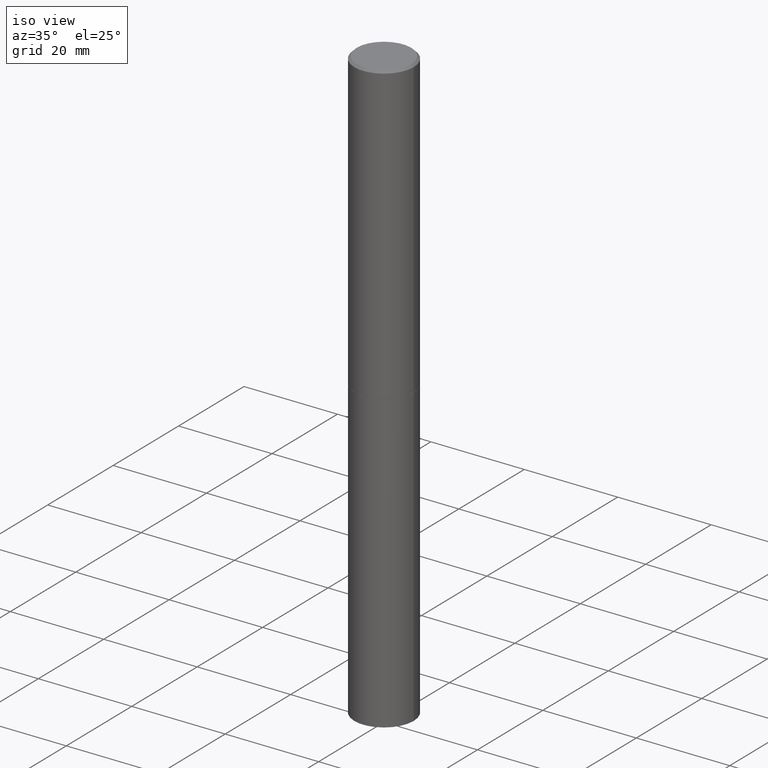
[diagram: clean part render]
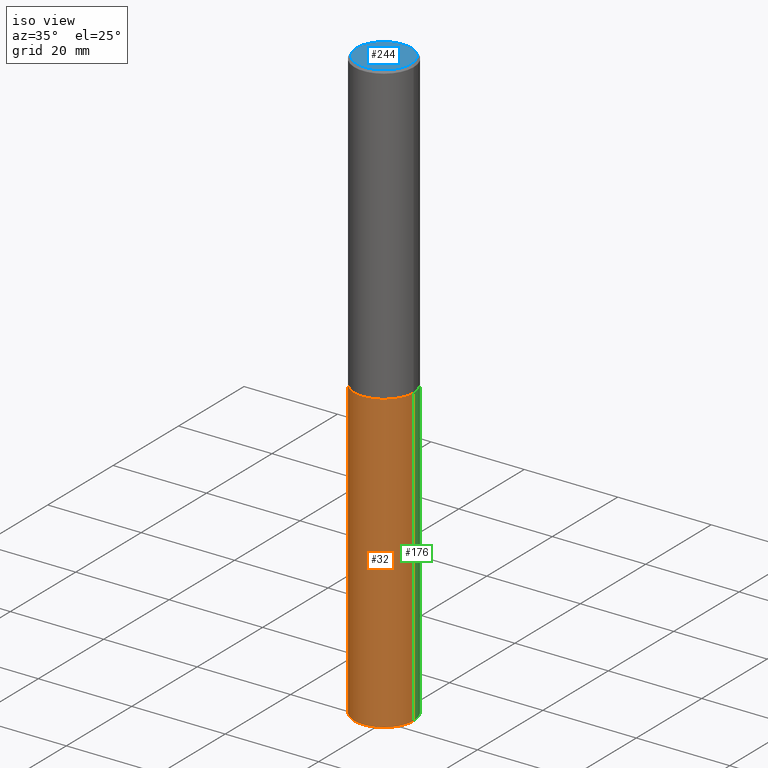
[diagram: same view with three faces highlighted in distinct colors, each labeled with its STEP entity id]
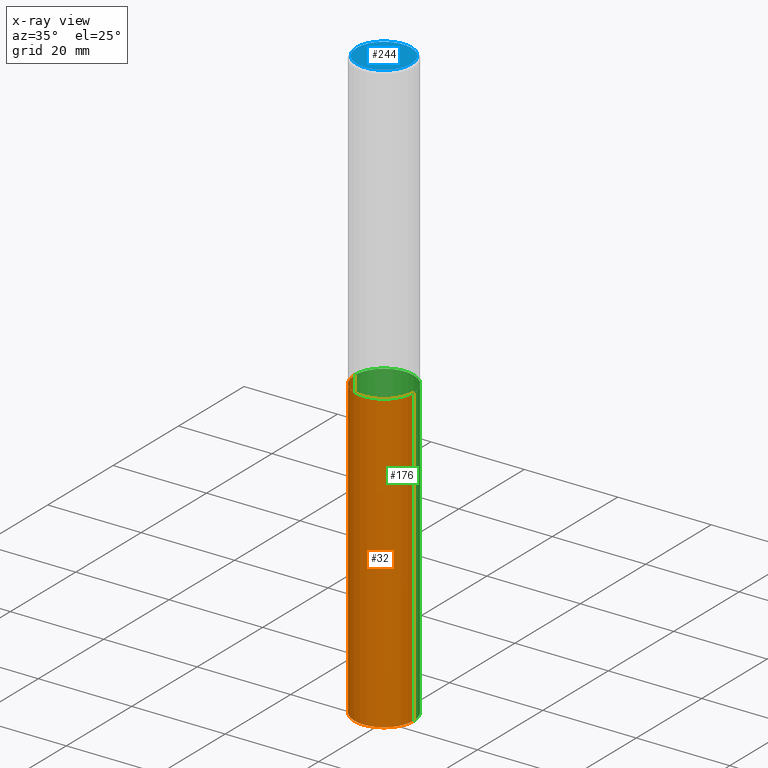
[diagram: x-ray of the same camera — body ghosted, the three highlighted faces saturated]
A machine part, iso view with three faces highlighted in distinct colors.
The next image is the same camera in x-ray (body ghosted, the three faces saturated) — at least one of them is partly hidden behind the body in this view.
Their STEP definitions:

[orange] entity #32 — the highlighted cylindrical surface (edge-blend (fillet) strip) has radius 6.35 mm, axis along (-0, 0, 1).
#19 = DIRECTION ( 'NONE',  ( -2.445468806185136597E-29, 3.491481338843145583E-15, 1.000000000000000000 ) ) ;
#31 = CARTESIAN_POINT ( 'NONE',  ( 0.2500000000000000000, -1.745740669421566678E-15, 1.219044193948983948E-29 ) ) ;
#32 = ADVANCED_FACE ( 'NONE', ( #220 ), #126, .T. ) ;
#34 = EDGE_CURVE ( 'NONE', #73, #54, #215, .T. ) ;
#40 = VERTEX_POINT ( 'NONE', #189 ) ;
#49 = CIRCLE ( 'NONE', #75, 0.2500000000000000000 ) ;
#54 = VERTEX_POINT ( 'NONE', #363 ) ;
#58 = DIRECTION ( 'NONE',  ( -2.445468806185136597E-29, 3.491481338843145583E-15, 1.000000000000000000 ) ) ;
#62 = CARTESIAN_POINT ( 'NONE',  ( 0.2500000000000000000, -1.920314736363729656E-14, -5.000000000000000000 ) ) ;
#66 = CIRCLE ( 'NONE', #298, 0.2500000000000000000 ) ;
#73 = VERTEX_POINT ( 'NONE', #85 ) ;
#75 = AXIS2_PLACEMENT_3D ( 'NONE', #288, #58, #173 ) ;
#85 = CARTESIAN_POINT ( 'NONE',  ( -0.2500000000000000000, -1.131669818126154695E-14, -5.000000000000000000 ) ) ;
#86 = ORIENTED_EDGE ( 'NONE', *, *, #222, .T. ) ;
#117 = VECTOR ( 'NONE', #297, 39.37007874015748143 ) ;
#126 = CYLINDRICAL_SURFACE ( 'NONE', #353, 0.2500000000000000000 ) ;
#154 = DIRECTION ( 'NONE',  ( 1.000000000000000000, -6.982962677686266711E-15, 4.876176775795935793E-29 ) ) ;
#162 = ORIENTED_EDGE ( 'NONE', *, *, #341, .T. ) ;
#168 = LINE ( 'NONE', #31, #193 ) ;
#173 = DIRECTION ( 'NONE',  ( 1.000000000000000000, -6.982962677686266711E-15, 0.000000000000000000 ) ) ;
#183 = CARTESIAN_POINT ( 'NONE',  ( -0.2500000000000000000, 1.776356839400250465E-15, -1.229733772563726445E-29 ) ) ;
#189 = CARTESIAN_POINT ( 'NONE',  ( 0.2500000000000000000, -1.047444401652943162E-14, -2.500000000000000000 ) ) ;
#193 = VECTOR ( 'NONE', #291, 39.37007874015748143 ) ;
#215 = LINE ( 'NONE', #183, #117 ) ;
#220 = FACE_OUTER_BOUND ( 'NONE', #271, .T. ) ;
#222 = EDGE_CURVE ( 'NONE', #73, #354, #66, .T. ) ;
#223 = DIRECTION ( 'NONE',  ( -2.445468806185136597E-29, 3.491481338843145583E-15, 1.000000000000000000 ) ) ;
#225 = CARTESIAN_POINT ( 'NONE',  ( 1.222734403092568523E-28, -1.745740669421572989E-14, -5.000000000000000000 ) ) ;
#238 = CARTESIAN_POINT ( 'NONE',  ( 0.000000000000000000, 0.000000000000000000, 0.000000000000000000 ) ) ;
#247 = DIRECTION ( 'NONE',  ( 1.000000000000000000, -6.982962677686270655E-15, 0.000000000000000000 ) ) ;
#268 = ORIENTED_EDGE ( 'NONE', *, *, #323, .F. ) ;
#271 = EDGE_LOOP ( 'NONE', ( #356, #86, #162, #268 ) ) ;
#288 = CARTESIAN_POINT ( 'NONE',  ( 6.113672015462842613E-29, -8.728703347107864943E-15, -2.500000000000000000 ) ) ;
#291 = DIRECTION ( 'NONE',  ( -2.445468806185136877E-29, 3.491481338843145188E-15, 1.000000000000000000 ) ) ;
#297 = DIRECTION ( 'NONE',  ( -2.445468806185136877E-29, 3.491481338843145188E-15, 1.000000000000000000 ) ) ;
#298 = AXIS2_PLACEMENT_3D ( 'NONE', #225, #223, #247 ) ;
#323 = EDGE_CURVE ( 'NONE', #54, #40, #49, .T. ) ;
#341 = EDGE_CURVE ( 'NONE', #354, #40, #168, .T. ) ;
#353 = AXIS2_PLACEMENT_3D ( 'NONE', #238, #19, #154 ) ;
#354 = VERTEX_POINT ( 'NONE', #62 ) ;
#356 = ORIENTED_EDGE ( 'NONE', *, *, #34, .F. ) ;
#363 = CARTESIAN_POINT ( 'NONE',  ( -0.2500000000000000000, -1.131669818126154695E-14, -2.500000000000000000 ) ) ;

[blue] entity #244 — the highlighted planar face has unit normal (0, -0, -1).
#2 = DIRECTION ( 'NONE',  ( 1.000000000000000000, -6.982962677686266711E-15, 4.876225828469315047E-29 ) ) ;
#26 = VERTEX_POINT ( 'NONE', #359 ) ;
#50 = CARTESIAN_POINT ( 'NONE',  ( 0.2299999999999997047, -1.681434332853597236E-15, 4.268512490111905999E-18 ) ) ;
#53 = CARTESIAN_POINT ( 'NONE',  ( -1.043851414335219820E-46, 1.490343170380447200E-32, 4.268512490100411279E-18 ) ) ;
#63 = ORIENTED_EDGE ( 'NONE', *, *, #253, .T. ) ;
#74 = AXIS2_PLACEMENT_3D ( 'NONE', #221, #249, #2 ) ;
#87 = CARTESIAN_POINT ( 'NONE',  ( 1.606081415867839095E-15, 0.2299999999999997047, -8.009064516888722925E-16 ) ) ;
#100 = ORIENTED_EDGE ( 'NONE', *, *, #123, .T. ) ;
#123 = EDGE_CURVE ( 'NONE', #26, #130, #141, .T. ) ;
#130 = VERTEX_POINT ( 'NONE', #50 ) ;
#136 = CIRCLE ( 'NONE', #74, 0.2299999999999997047 ) ;
#141 = CIRCLE ( 'NONE', #287, 0.2299999999999997047 ) ;
#158 = DIRECTION ( 'NONE',  ( -2.445468806185136597E-29, 3.491481338843145583E-15, 1.000000000000000000 ) ) ;
#197 = PLANE ( 'NONE',  #328 ) ;
#221 = CARTESIAN_POINT ( 'NONE',  ( -1.043851414335219820E-46, 1.490343170380447200E-32, 4.268512490100411279E-18 ) ) ;
#244 = ADVANCED_FACE ( 'NONE', ( #246 ), #197, .F. ) ;
#246 = FACE_OUTER_BOUND ( 'NONE', #325, .T. ) ;
#249 = DIRECTION ( 'NONE',  ( -2.445468806185136597E-29, 3.491481338843145583E-15, 1.000000000000000000 ) ) ;
#253 = EDGE_CURVE ( 'NONE', #130, #26, #136, .T. ) ;
#287 = AXIS2_PLACEMENT_3D ( 'NONE', #53, #158, #340 ) ;
#325 = EDGE_LOOP ( 'NONE', ( #100, #63 ) ) ;
#328 = AXIS2_PLACEMENT_3D ( 'NONE', #87, #339, #333 ) ;
#333 = DIRECTION ( 'NONE',  ( -1.000000000000000000, 6.982962677686265922E-15, -4.876176775795935793E-29 ) ) ;
#339 = DIRECTION ( 'NONE',  ( 2.438088387897960049E-29, -3.491481338843145188E-15, -1.000000000000000000 ) ) ;
#340 = DIRECTION ( 'NONE',  ( 1.000000000000000000, -6.982962677686266711E-15, 4.876225828469315047E-29 ) ) ;
#359 = CARTESIAN_POINT ( 'NONE',  ( -0.2299999999999997047, 1.640996229256270547E-15, 4.268512490089056766E-18 ) ) ;

[green] entity #176 — the highlighted cylindrical surface (edge-blend (fillet) strip) has radius 6.35 mm, axis along (-0, 0, 1).
#25 = DIRECTION ( 'NONE',  ( 1.000000000000000000, -6.982962677686266711E-15, 4.876176775795935793E-29 ) ) ;
#29 = CARTESIAN_POINT ( 'NONE',  ( 0.000000000000000000, 0.000000000000000000, 0.000000000000000000 ) ) ;
#31 = CARTESIAN_POINT ( 'NONE',  ( 0.2500000000000000000, -1.745740669421566678E-15, 1.219044193948983948E-29 ) ) ;
#34 = EDGE_CURVE ( 'NONE', #73, #54, #215, .T. ) ;
#35 = AXIS2_PLACEMENT_3D ( 'NONE', #307, #226, #194 ) ;
#40 = VERTEX_POINT ( 'NONE', #189 ) ;
#48 = CYLINDRICAL_SURFACE ( 'NONE', #235, 0.2500000000000000000 ) ;
#54 = VERTEX_POINT ( 'NONE', #363 ) ;
#62 = CARTESIAN_POINT ( 'NONE',  ( 0.2500000000000000000, -1.920314736363729656E-14, -5.000000000000000000 ) ) ;
#73 = VERTEX_POINT ( 'NONE', #85 ) ;
#76 = ORIENTED_EDGE ( 'NONE', *, *, #317, .T. ) ;
#79 = EDGE_CURVE ( 'NONE', #40, #54, #342, .T. ) ;
#85 = CARTESIAN_POINT ( 'NONE',  ( -0.2500000000000000000, -1.131669818126154695E-14, -5.000000000000000000 ) ) ;
#89 = DIRECTION ( 'NONE',  ( 1.000000000000000000, -6.982962677686270655E-15, 0.000000000000000000 ) ) ;
#117 = VECTOR ( 'NONE', #297, 39.37007874015748143 ) ;
#122 = ORIENTED_EDGE ( 'NONE', *, *, #34, .T. ) ;
#133 = FACE_OUTER_BOUND ( 'NONE', #318, .T. ) ;
#152 = ORIENTED_EDGE ( 'NONE', *, *, #79, .F. ) ;
#168 = LINE ( 'NONE', #31, #193 ) ;
#176 = ADVANCED_FACE ( 'NONE', ( #133 ), #48, .T. ) ;
#183 = CARTESIAN_POINT ( 'NONE',  ( -0.2500000000000000000, 1.776356839400250465E-15, -1.229733772563726445E-29 ) ) ;
#189 = CARTESIAN_POINT ( 'NONE',  ( 0.2500000000000000000, -1.047444401652943162E-14, -2.500000000000000000 ) ) ;
#193 = VECTOR ( 'NONE', #291, 39.37007874015748143 ) ;
#194 = DIRECTION ( 'NONE',  ( 1.000000000000000000, -6.982962677686266711E-15, 0.000000000000000000 ) ) ;
#215 = LINE ( 'NONE', #183, #117 ) ;
#226 = DIRECTION ( 'NONE',  ( -2.445468806185136597E-29, 3.491481338843145583E-15, 1.000000000000000000 ) ) ;
#235 = AXIS2_PLACEMENT_3D ( 'NONE', #29, #282, #25 ) ;
#236 = AXIS2_PLACEMENT_3D ( 'NONE', #254, #286, #89 ) ;
#254 = CARTESIAN_POINT ( 'NONE',  ( 1.222734403092568523E-28, -1.745740669421572989E-14, -5.000000000000000000 ) ) ;
#262 = ORIENTED_EDGE ( 'NONE', *, *, #341, .F. ) ;
#282 = DIRECTION ( 'NONE',  ( -2.445468806185136597E-29, 3.491481338843145583E-15, 1.000000000000000000 ) ) ;
#286 = DIRECTION ( 'NONE',  ( -2.445468806185136597E-29, 3.491481338843145583E-15, 1.000000000000000000 ) ) ;
#291 = DIRECTION ( 'NONE',  ( -2.445468806185136877E-29, 3.491481338843145188E-15, 1.000000000000000000 ) ) ;
#297 = DIRECTION ( 'NONE',  ( -2.445468806185136877E-29, 3.491481338843145188E-15, 1.000000000000000000 ) ) ;
#307 = CARTESIAN_POINT ( 'NONE',  ( 6.113672015462842613E-29, -8.728703347107864943E-15, -2.500000000000000000 ) ) ;
#317 = EDGE_CURVE ( 'NONE', #354, #73, #343, .T. ) ;
#318 = EDGE_LOOP ( 'NONE', ( #76, #122, #152, #262 ) ) ;
#341 = EDGE_CURVE ( 'NONE', #354, #40, #168, .T. ) ;
#342 = CIRCLE ( 'NONE', #35, 0.2500000000000000000 ) ;
#343 = CIRCLE ( 'NONE', #236, 0.2500000000000000000 ) ;
#354 = VERTEX_POINT ( 'NONE', #62 ) ;
#363 = CARTESIAN_POINT ( 'NONE',  ( -0.2500000000000000000, -1.131669818126154695E-14, -2.500000000000000000 ) ) ;